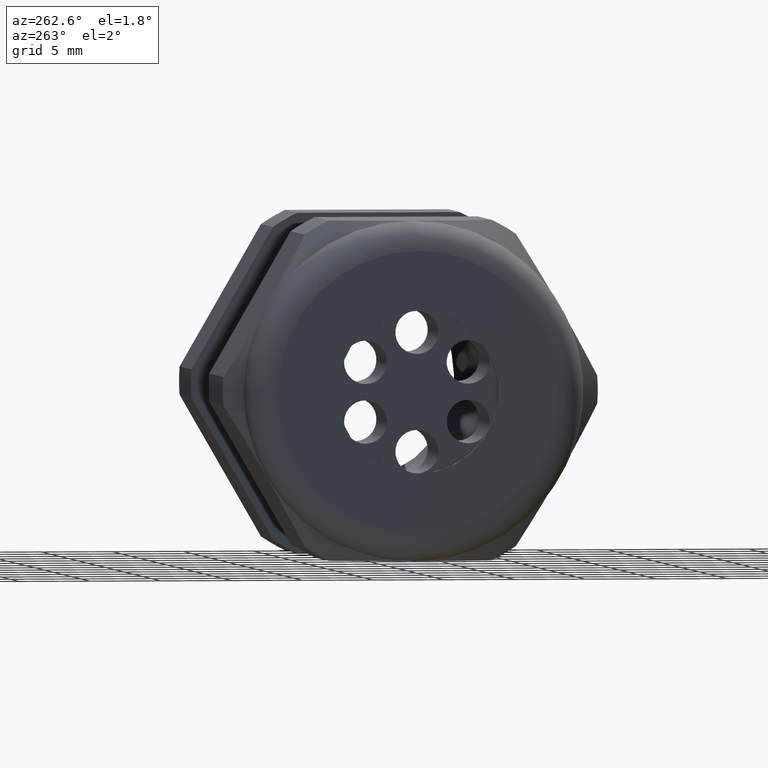
[diagram: clean part render]
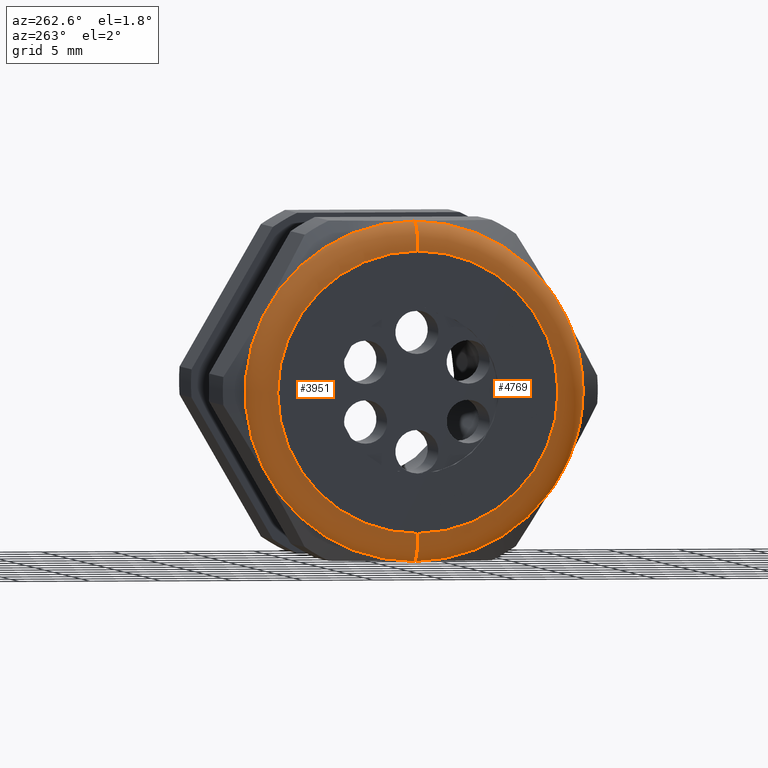
[diagram: same view with one multi-face feature highlighted, each face labeled with its STEP entity id]
A machine part, auxiliary view. The highlighted faces form ONE feature: a constant-radius fillet chain: 2 tangent blend faces with common blend radius 2.032 mm. The faces share edges in the B-rep.
Their STEP definitions:
[1] entity #4769 (Torus):
#988 = CARTESIAN_POINT ( 'NONE',  ( -1.409999999999999900, 0.0000000000000000000, 0.3899999999999999600 ) ) ;
#994 = CARTESIAN_POINT ( 'NONE',  ( -1.409999999999999900, 5.265981236333617600E-017, -0.3899999999999999600 ) ) ;
#995 = DIRECTION ( 'NONE',  ( 0.0000000000000000000, -1.224646799147353900E-016, 1.000000000000000000 ) ) ;
#996 = DIRECTION ( 'NONE',  ( 0.0000000000000000000, 1.000000000000000000, 1.224646799147353200E-016 ) ) ;
#997 = CARTESIAN_POINT ( 'NONE',  ( -1.330000000000000100, 4.776122516674676800E-017, -0.3899999999999999600 ) ) ;
#998 = AXIS2_PLACEMENT_3D ( 'NONE', #997, #996, #995 ) ;
#999 = CIRCLE ( 'NONE', #998, 0.07999999999999996000 ) ;
#1000 = CARTESIAN_POINT ( 'NONE',  ( -1.330000000000000100, 5.755839955992558400E-017, 0.4699999999999999200 ) ) ;
#1001 = CARTESIAN_POINT ( 'NONE',  ( -1.330000000000000100, 0.0000000000000000000, -0.4699999999999999200 ) ) ;
#1135 = DIRECTION ( 'NONE',  ( 0.0000000000000000000, 0.0000000000000000000, -1.000000000000000000 ) ) ;
#1136 = DIRECTION ( 'NONE',  ( 0.0000000000000000000, -1.000000000000000000, 0.0000000000000000000 ) ) ;
#1137 = CARTESIAN_POINT ( 'NONE',  ( -1.330000000000000100, 0.0000000000000000000, 0.3899999999999999600 ) ) ;
#1138 = AXIS2_PLACEMENT_3D ( 'NONE', #1137, #1136, #1135 ) ;
#1139 = CIRCLE ( 'NONE', #1138, 0.07999999999999996000 ) ;
#2173 = DIRECTION ( 'NONE',  ( 0.0000000000000000000, 0.0000000000000000000, 1.000000000000000000 ) ) ;
#2174 = DIRECTION ( 'NONE',  ( -1.000000000000000000, 0.0000000000000000000, 0.0000000000000000000 ) ) ;
#2175 = CARTESIAN_POINT ( 'NONE',  ( -1.409999999999999900, 0.0000000000000000000, 0.0000000000000000000 ) ) ;
#2176 = AXIS2_PLACEMENT_3D ( 'NONE', #2175, #2174, #2173 ) ;
#2177 = CIRCLE ( 'NONE', #2176, 0.3899999999999999600 ) ;
#2217 = DIRECTION ( 'NONE',  ( 0.0000000000000000000, 0.0000000000000000000, 1.000000000000000000 ) ) ;
#2218 = DIRECTION ( 'NONE',  ( 1.000000000000000000, 0.0000000000000000000, 0.0000000000000000000 ) ) ;
#2219 = AXIS2_PLACEMENT_3D ( 'NONE', #2224, #2218, #2217 ) ;
#2220 = CIRCLE ( 'NONE', #2219, 0.4699999999999999200 ) ;
#2224 = CARTESIAN_POINT ( 'NONE',  ( -1.330000000000000100, 0.0000000000000000000, 0.0000000000000000000 ) ) ;
#2490 = AXIS2_PLACEMENT_3D ( 'NONE', #2496, #2553, #2552 ) ;
#2491 = TOROIDAL_SURFACE ( 'NONE', #2490, 0.3899999999999999600, 0.08000000000000000200 ) ;
#2492 = FACE_OUTER_BOUND ( 'NONE', #4770, .T. ) ;
#2496 = CARTESIAN_POINT ( 'NONE',  ( -1.330000000000000100, 0.0000000000000000000, 0.0000000000000000000 ) ) ;
#2552 = DIRECTION ( 'NONE',  ( 0.0000000000000000000, 0.0000000000000000000, 1.000000000000000000 ) ) ;
#2553 = DIRECTION ( 'NONE',  ( -1.000000000000000000, 0.0000000000000000000, 0.0000000000000000000 ) ) ;
#3955 = VERTEX_POINT ( 'NONE', #1001 ) ;
#3956 = VERTEX_POINT ( 'NONE', #1000 ) ;
#3958 = EDGE_CURVE ( 'NONE', #3955, #3959, #999, .T. ) ;
#3959 = VERTEX_POINT ( 'NONE', #994 ) ;
#3962 = VERTEX_POINT ( 'NONE', #988 ) ;
#4020 = EDGE_CURVE ( 'NONE', #3956, #3962, #1139, .T. ) ;
#4552 = EDGE_CURVE ( 'NONE', #3959, #3962, #2177, .T. ) ;
#4565 = EDGE_CURVE ( 'NONE', #3956, #3955, #2220, .T. ) ;
#4769 = ADVANCED_FACE ( 'NONE', ( #2492 ), #2491, .T. ) ;
#4770 = EDGE_LOOP ( 'NONE', ( #4771, #4772, #4773, #4774 ) ) ;
#4771 = ORIENTED_EDGE ( 'NONE', *, *, #3958, .F. ) ;
#4772 = ORIENTED_EDGE ( 'NONE', *, *, #4565, .F. ) ;
#4773 = ORIENTED_EDGE ( 'NONE', *, *, #4020, .T. ) ;
#4774 = ORIENTED_EDGE ( 'NONE', *, *, #4552, .F. ) ;
[2] entity #3951 (Torus):
#988 = CARTESIAN_POINT ( 'NONE',  ( -1.409999999999999900, 0.0000000000000000000, 0.3899999999999999600 ) ) ;
#989 = DIRECTION ( 'NONE',  ( 0.0000000000000000000, 0.0000000000000000000, 1.000000000000000000 ) ) ;
#990 = DIRECTION ( 'NONE',  ( -1.000000000000000000, 0.0000000000000000000, 0.0000000000000000000 ) ) ;
#991 = CARTESIAN_POINT ( 'NONE',  ( -1.409999999999999900, 0.0000000000000000000, 0.0000000000000000000 ) ) ;
#992 = AXIS2_PLACEMENT_3D ( 'NONE', #991, #990, #989 ) ;
#993 = CIRCLE ( 'NONE', #992, 0.3899999999999999600 ) ;
#994 = CARTESIAN_POINT ( 'NONE',  ( -1.409999999999999900, 5.265981236333617600E-017, -0.3899999999999999600 ) ) ;
#995 = DIRECTION ( 'NONE',  ( 0.0000000000000000000, -1.224646799147353900E-016, 1.000000000000000000 ) ) ;
#996 = DIRECTION ( 'NONE',  ( 0.0000000000000000000, 1.000000000000000000, 1.224646799147353200E-016 ) ) ;
#997 = CARTESIAN_POINT ( 'NONE',  ( -1.330000000000000100, 4.776122516674676800E-017, -0.3899999999999999600 ) ) ;
#998 = AXIS2_PLACEMENT_3D ( 'NONE', #997, #996, #995 ) ;
#999 = CIRCLE ( 'NONE', #998, 0.07999999999999996000 ) ;
#1000 = CARTESIAN_POINT ( 'NONE',  ( -1.330000000000000100, 5.755839955992558400E-017, 0.4699999999999999200 ) ) ;
#1001 = CARTESIAN_POINT ( 'NONE',  ( -1.330000000000000100, 0.0000000000000000000, -0.4699999999999999200 ) ) ;
#1002 = DIRECTION ( 'NONE',  ( 0.0000000000000000000, 0.0000000000000000000, 1.000000000000000000 ) ) ;
#1003 = DIRECTION ( 'NONE',  ( 1.000000000000000000, 0.0000000000000000000, 0.0000000000000000000 ) ) ;
#1004 = CARTESIAN_POINT ( 'NONE',  ( -1.330000000000000100, 0.0000000000000000000, 0.0000000000000000000 ) ) ;
#1005 = AXIS2_PLACEMENT_3D ( 'NONE', #1004, #1003, #1002 ) ;
#1006 = CIRCLE ( 'NONE', #1005, 0.4699999999999999200 ) ;
#1007 = DIRECTION ( 'NONE',  ( 0.0000000000000000000, 0.0000000000000000000, 1.000000000000000000 ) ) ;
#1008 = DIRECTION ( 'NONE',  ( -1.000000000000000000, 0.0000000000000000000, 0.0000000000000000000 ) ) ;
#1009 = CARTESIAN_POINT ( 'NONE',  ( -1.330000000000000100, 0.0000000000000000000, 0.0000000000000000000 ) ) ;
#1010 = AXIS2_PLACEMENT_3D ( 'NONE', #1009, #1008, #1007 ) ;
#1011 = TOROIDAL_SURFACE ( 'NONE', #1010, 0.3899999999999999600, 0.08000000000000000200 ) ;
#1012 = FACE_OUTER_BOUND ( 'NONE', #3952, .T. ) ;
#1135 = DIRECTION ( 'NONE',  ( 0.0000000000000000000, 0.0000000000000000000, -1.000000000000000000 ) ) ;
#1136 = DIRECTION ( 'NONE',  ( 0.0000000000000000000, -1.000000000000000000, 0.0000000000000000000 ) ) ;
#1137 = CARTESIAN_POINT ( 'NONE',  ( -1.330000000000000100, 0.0000000000000000000, 0.3899999999999999600 ) ) ;
#1138 = AXIS2_PLACEMENT_3D ( 'NONE', #1137, #1136, #1135 ) ;
#1139 = CIRCLE ( 'NONE', #1138, 0.07999999999999996000 ) ;
#3951 = ADVANCED_FACE ( 'NONE', ( #1012 ), #1011, .T. ) ;
#3952 = EDGE_LOOP ( 'NONE', ( #3953, #3957, #3960, #4019 ) ) ;
#3953 = ORIENTED_EDGE ( 'NONE', *, *, #3954, .F. ) ;
#3954 = EDGE_CURVE ( 'NONE', #3955, #3956, #1006, .T. ) ;
#3955 = VERTEX_POINT ( 'NONE', #1001 ) ;
#3956 = VERTEX_POINT ( 'NONE', #1000 ) ;
#3957 = ORIENTED_EDGE ( 'NONE', *, *, #3958, .T. ) ;
#3958 = EDGE_CURVE ( 'NONE', #3955, #3959, #999, .T. ) ;
#3959 = VERTEX_POINT ( 'NONE', #994 ) ;
#3960 = ORIENTED_EDGE ( 'NONE', *, *, #3961, .F. ) ;
#3961 = EDGE_CURVE ( 'NONE', #3962, #3959, #993, .T. ) ;
#3962 = VERTEX_POINT ( 'NONE', #988 ) ;
#4019 = ORIENTED_EDGE ( 'NONE', *, *, #4020, .F. ) ;
#4020 = EDGE_CURVE ( 'NONE', #3956, #3962, #1139, .T. ) ;